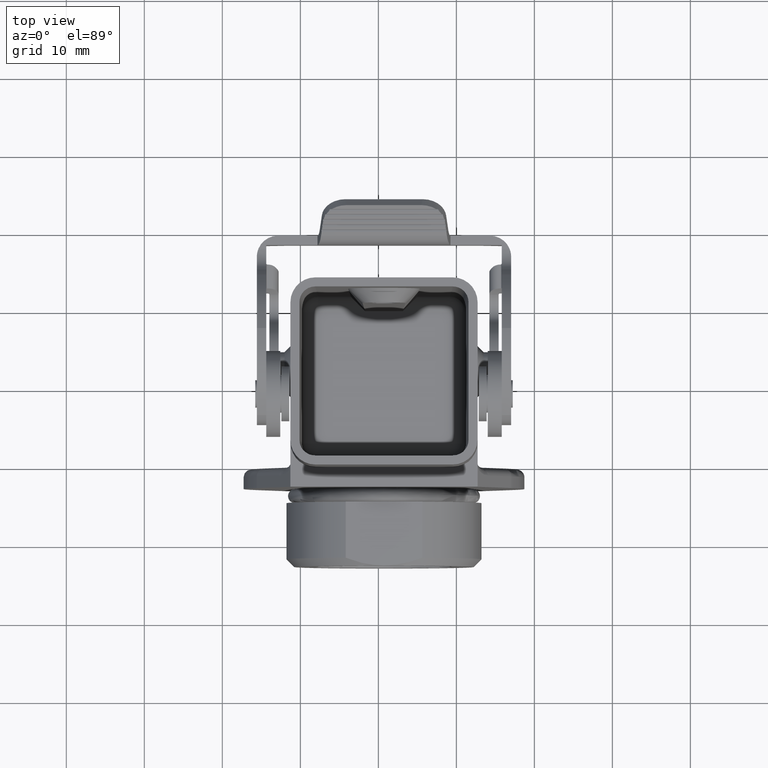
[diagram: clean part render]
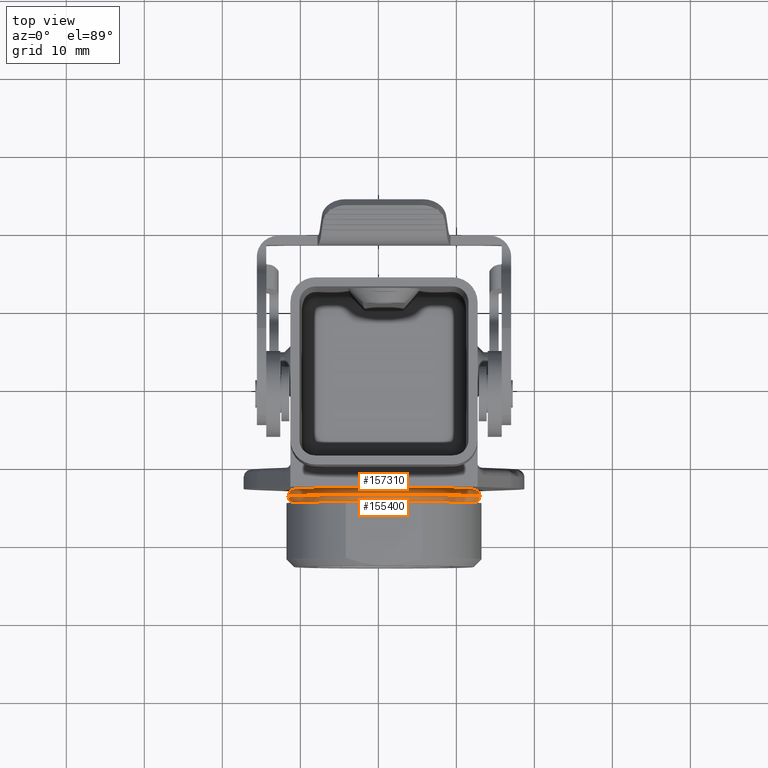
[diagram: same view with one multi-face feature highlighted, each face labeled with its STEP entity id]
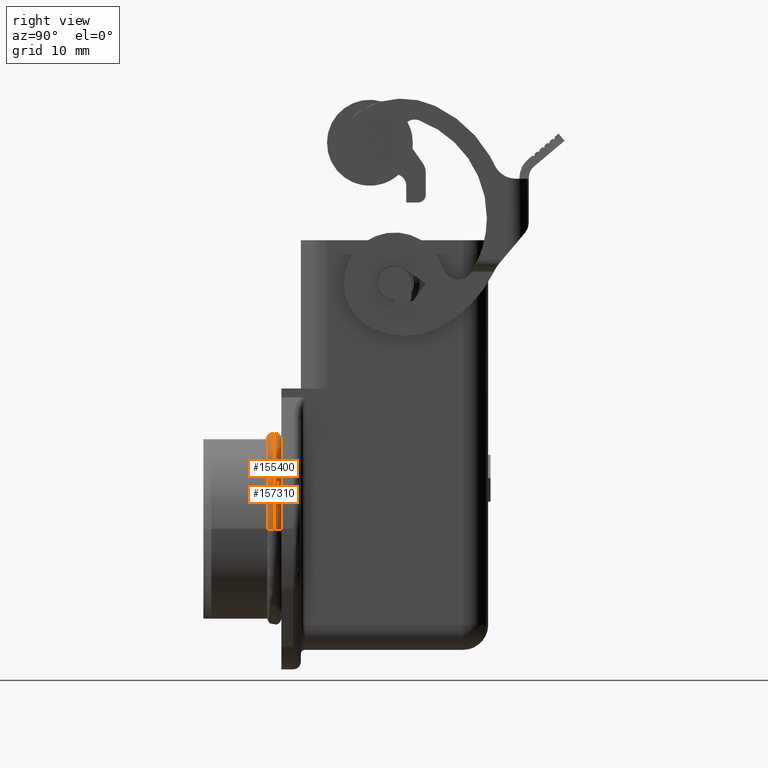
[diagram: same view with one multi-face feature highlighted, each face labeled with its STEP entity id]
A machine part, top view. The highlighted faces form ONE feature: a constant-radius fillet chain: 2 tangent blend faces with common blend radius 0.9 mm. The faces share edges in the B-rep.
A second angle (right view) of the same feature is appended — it is thin or edge-on in the first view.
Their STEP definitions:
[1] entity #155400 (Torus):
#132750=CARTESIAN_POINT('',(50.7233670036254,25.3557749794207,
-11.0000000938588));
#132760=DIRECTION('',(1.45606341342887E-5,-0.99999999946997,
2.91212682689919E-5));
#132770=DIRECTION('',(0.,2.91212682720789E-5,0.999999999575976));
#132780=AXIS2_PLACEMENT_3D('',#132750,#132760,#132770);
#132790=CIRCLE('',#132780,11.3998956887247);
#132800=CARTESIAN_POINT('',(50.7233670000001,25.3561069588412,
0.399895590032148));
#132810=VERTEX_POINT('',#132800);
#132820=CARTESIAN_POINT('',(39.3234713161091,25.355443,-11.0000000938587
));
#132830=VERTEX_POINT('',#132820);
#132840=EDGE_CURVE('',#132810,#132830,#132790,.T.);
#154520=CARTESIAN_POINT('',(62.1721316278908,25.3567707425489,
-11.0000000938587));
#154530=VERTEX_POINT('',#154520);
#154560=CARTESIAN_POINT('',(50.7721447624425,25.3554594214996,
-10.9999956952407));
#154570=DIRECTION('',(-0.000108289010277989,0.999999993960892,
-1.87538573671812E-5));
#154580=DIRECTION('',(0.999999994136745,0.000108289010297032,0.));
#154590=AXIS2_PLACEMENT_3D('',#154560,#154570,#154580);
#154600=CIRCLE('',#154590,11.3999956470639);
#155050=CARTESIAN_POINT('',(50.723367,26.255443,-11.0000000938587));
#155060=DIRECTION('',(0.,-1.,0.));
#155070=DIRECTION('',(-1.,0.,0.));
#155080=AXIS2_PLACEMENT_3D('',#155050,#155060,#155070);
#155090=TOROIDAL_SURFACE('',#155080,11.3998956838909,0.9);
#155100=CARTESIAN_POINT('',(62.1232626838909,26.255443,-11.0000000938587
));
#155110=DIRECTION('',(0.,0.,1.));
#155120=DIRECTION('',(1.,0.,0.));
#155130=AXIS2_PLACEMENT_3D('',#155100,#155110,#155120);
#155140=CIRCLE('',#155130,0.9);
#155150=CARTESIAN_POINT('',(63.0232626838909,26.255443,-11.0000000938587
));
#155160=VERTEX_POINT('',#155150);
#155170=EDGE_CURVE('',#154530,#155160,#155140,.T.);
#155180=ORIENTED_EDGE('',*,*,#155170,.T.);
#155190=EDGE_CURVE('',#132810,#154530,#154600,.T.);
#155200=ORIENTED_EDGE('',*,*,#155190,.T.);
#155210=ORIENTED_EDGE('',*,*,#132840,.F.);
#155220=CARTESIAN_POINT('',(39.3234713161091,26.255443,-11.0000000938587
));
#155230=DIRECTION('',(0.,0.,-1.));
#155240=DIRECTION('',(-1.,0.,0.));
#155250=AXIS2_PLACEMENT_3D('',#155220,#155230,#155240);
#155260=CIRCLE('',#155250,0.9);
#155270=CARTESIAN_POINT('',(38.4234713161091,26.255443,-11.0000000938587
));
#155280=VERTEX_POINT('',#155270);
#155290=EDGE_CURVE('',#132830,#155280,#155260,.T.);
#155300=ORIENTED_EDGE('',*,*,#155290,.F.);
#155310=CARTESIAN_POINT('',(50.723367,26.255443,-11.0000000938587));
#155320=DIRECTION('',(0.,-1.,0.));
#155330=DIRECTION('',(-1.,0.,0.));
#155340=AXIS2_PLACEMENT_3D('',#155310,#155320,#155330);
#155350=CIRCLE('',#155340,12.2998956838909);
#155360=EDGE_CURVE('',#155160,#155280,#155350,.T.);
#155370=ORIENTED_EDGE('',*,*,#155360,.T.);
#155380=EDGE_LOOP('',(#155370,#155300,#155210,#155200,#155180));
#155390=FACE_OUTER_BOUND('',#155380,.T.);
#155400=ADVANCED_FACE('',(#155390),#155090,.T.);
[2] entity #157310 (Torus):
#135460=CARTESIAN_POINT('',(50.7233670000001,27.1547790411588,
0.399895590032148));
#135470=VERTEX_POINT('',#135460);
#135520=CARTESIAN_POINT('',(50.7233670036254,27.1551110205793,
-11.0000000938588));
#135530=DIRECTION('',(-1.45606341342887E-5,-0.99999999946997,
-2.91212682686802E-5));
#135540=DIRECTION('',(0.,-2.91212682717673E-5,0.999999999575976));
#135550=AXIS2_PLACEMENT_3D('',#135520,#135530,#135540);
#135560=CIRCLE('',#135550,11.3998956887247);
#135570=CARTESIAN_POINT('',(39.3234713161091,27.155443,-11.0000000938587
));
#135580=VERTEX_POINT('',#135570);
#135590=EDGE_CURVE('',#135470,#135580,#135560,.T.);
#154840=CARTESIAN_POINT('',(62.1721315105661,27.1541152638311,
-11.0000000938587));
#154850=VERTEX_POINT('',#154840);
#154880=CARTESIAN_POINT('',(50.7721334359516,27.1554053888828,
-10.9999970465476));
#154890=DIRECTION('',(-0.000106148164375055,-0.999999994166758,
-1.99762585130991E-5));
#154900=DIRECTION('',(-0.999999994366284,0.000106148164396234,0.));
#154910=AXIS2_PLACEMENT_3D('',#154880,#154890,#154900);
#154920=CIRCLE('',#154910,11.4000034786602);
#154930=EDGE_CURVE('',#154850,#135470,#154920,.T.);
#155050=CARTESIAN_POINT('',(50.723367,26.255443,-11.0000000938587));
#155060=DIRECTION('',(0.,-1.,0.));
#155070=DIRECTION('',(-1.,0.,0.));
#155080=AXIS2_PLACEMENT_3D('',#155050,#155060,#155070);
#155090=TOROIDAL_SURFACE('',#155080,11.3998956838909,0.9);
#155150=CARTESIAN_POINT('',(63.0232626838909,26.255443,-11.0000000938587
));
#155160=VERTEX_POINT('',#155150);
#155270=CARTESIAN_POINT('',(38.4234713161091,26.255443,-11.0000000938587
));
#155280=VERTEX_POINT('',#155270);
#155310=CARTESIAN_POINT('',(50.723367,26.255443,-11.0000000938587));
#155320=DIRECTION('',(0.,-1.,0.));
#155330=DIRECTION('',(-1.,0.,0.));
#155340=AXIS2_PLACEMENT_3D('',#155310,#155320,#155330);
#155350=CIRCLE('',#155340,12.2998956838909);
#155360=EDGE_CURVE('',#155160,#155280,#155350,.T.);
#157120=CARTESIAN_POINT('',(39.3234713161091,26.255443,-11.0000000938587
));
#157130=DIRECTION('',(0.,0.,-1.));
#157140=DIRECTION('',(-1.,0.,0.));
#157150=AXIS2_PLACEMENT_3D('',#157120,#157130,#157140);
#157160=CIRCLE('',#157150,0.9);
#157170=EDGE_CURVE('',#155280,#135580,#157160,.T.);
#157180=ORIENTED_EDGE('',*,*,#157170,.F.);
#157190=ORIENTED_EDGE('',*,*,#135590,.T.);
#157200=ORIENTED_EDGE('',*,*,#154930,.T.);
#157210=CARTESIAN_POINT('',(62.1232626838909,26.255443,-11.0000000938587
));
#157220=DIRECTION('',(0.,0.,1.));
#157230=DIRECTION('',(1.,0.,0.));
#157240=AXIS2_PLACEMENT_3D('',#157210,#157220,#157230);
#157250=CIRCLE('',#157240,0.9);
#157260=EDGE_CURVE('',#155160,#154850,#157250,.T.);
#157270=ORIENTED_EDGE('',*,*,#157260,.T.);
#157280=ORIENTED_EDGE('',*,*,#155360,.F.);
#157290=EDGE_LOOP('',(#157280,#157270,#157200,#157190,#157180));
#157300=FACE_OUTER_BOUND('',#157290,.T.);
#157310=ADVANCED_FACE('',(#157300),#155090,.T.);